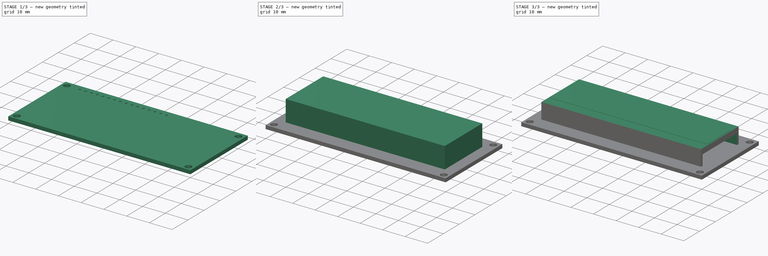
[diagram: build sequence overview — one tinted view per stage of 3, left to right]
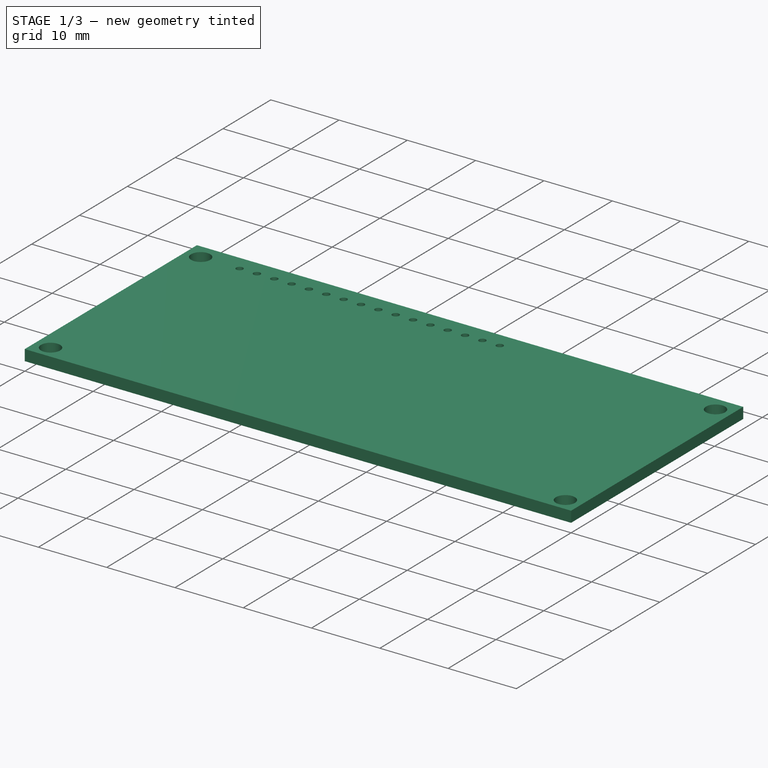
[diagram: stage 1 of 3 — iso view after this stage's code; geometry added in this stage tinted green]
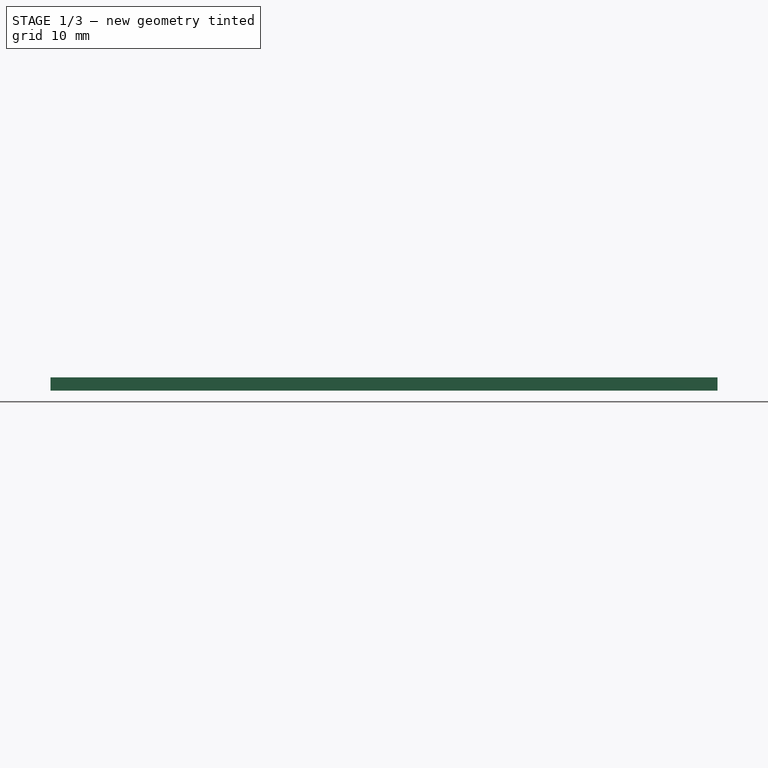
[diagram: stage 1 of 3 — front view after this stage's code; geometry added in this stage tinted green]
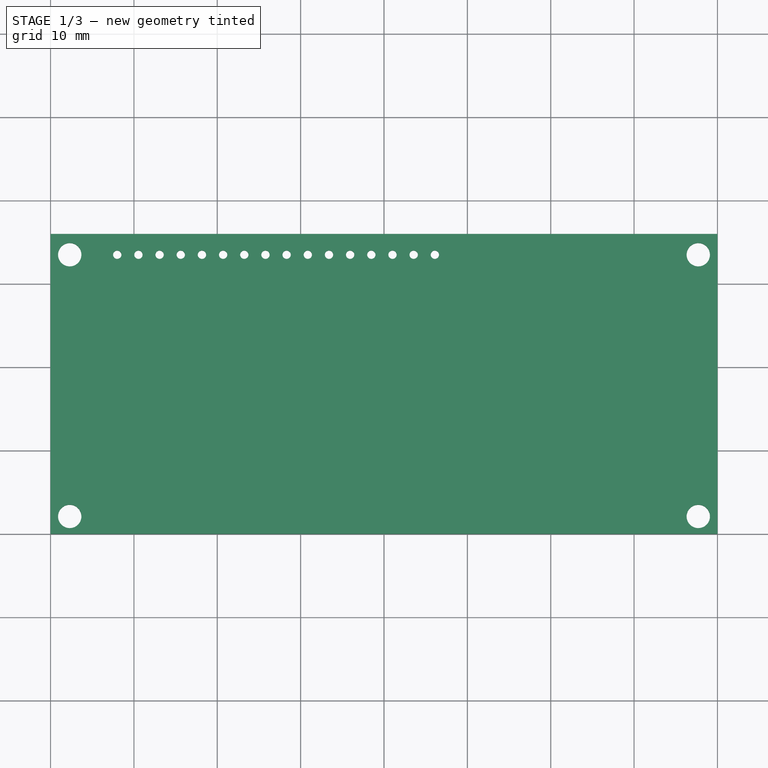
[diagram: stage 1 of 3 — top view after this stage's code; geometry added in this stage tinted green]
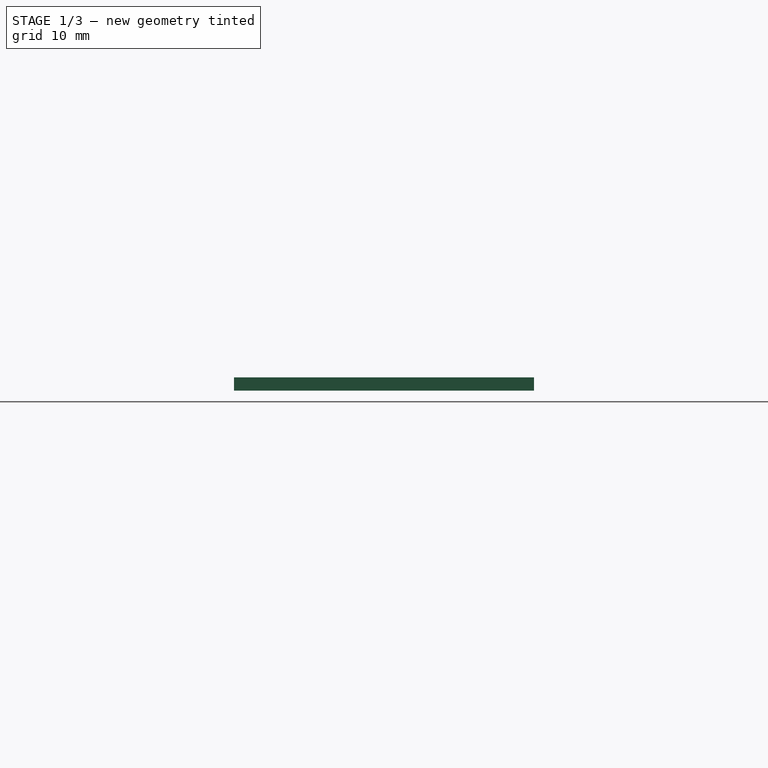
[diagram: stage 1 of 3 — right view after this stage's code; geometry added in this stage tinted green]
FCSTD DOCUMENT  (FreeCAD 0.19R22665 (Git))
Label: lcd
License: All rights reserved
LicenseURL: http://en.wikipedia.org/wiki/All_rights_reserved
objects: Sketcher::SketchObject×7, PartDesign::Pad×4, PartDesign::Pocket×3, PartDesign::Body×2, PartDesign::ShapeBinder×1, Part::FeaturePython×1, PartDesign::CoordinateSystem×1, App::Part×1
note: 26 computed .brp shape members not serialized (recipe doc carries the construction recipe); baked Part::Feature solids carry a one-line shape summary decoded from their .brp

FEATURE [Sketcher::SketchObject] Sketch003
  MapMode = 5
  Support = -> [XY_Plane001]
  sketch-geometry (4):
    g0: LineSegment StartX=-80 StartY=36 StartZ=0 EndX=0 EndY=36 EndZ=0
    g1: LineSegment StartX=0 StartY=36 StartZ=0 EndX=0 EndY=0 EndZ=0
    g2: LineSegment StartX=0 StartY=0 StartZ=0 EndX=-80 EndY=0 EndZ=0
    g3: LineSegment StartX=-80 StartY=0 StartZ=0 EndX=-80 EndY=36 EndZ=0
  constraints (11):
    c: Coincident(g0,g1)
    c: Coincident(g1,g2)
    c: Coincident(g2,g3)
    c: Coincident(g3,g0)
    c: Horizontal(g0)
    c: Horizontal(g2)
    c: Vertical(g1)
    c: Vertical(g3)
    c: Coincident(g1,g-1)
    c: Distance(g1) = 36
    c: Distance(g2) = 80
FEATURE [PartDesign::Pad] Pad001  label="Pad002"
  AllowMultiFace = false
  Direction = (1,1,1)
  Length = 1.6
  Length2 = 100
  Profile = -> Sketch003
  Type = 0
FEATURE [Sketcher::SketchObject] Sketch004
  ExternalGeometry = -> [Pad001]
  MapMode = 5
  Placement = pos=(0,0,1.6) rot=(0,0,1;0rad)
  Support = -> [Pad001]
  sketch-geometry (4):
    g0: Circle CenterX=-77.7 CenterY=33.5 CenterZ=0 NormalX=0 NormalY=0 NormalZ=1 AngleXU=0 Radius=1.4
    g1: Circle CenterX=-77.7 CenterY=2.1 CenterZ=0 NormalX=0 NormalY=0 NormalZ=1 AngleXU=0 Radius=1.4
    g2: Circle CenterX=-2.3 CenterY=33.5 CenterZ=0 NormalX=0 NormalY=0 NormalZ=1 AngleXU=0 Radius=1.4
    g3: Circle CenterX=-2.3 CenterY=2.1 CenterZ=0 NormalX=0 NormalY=0 NormalZ=1 AngleXU=0 Radius=1.4
  constraints (12):
    c: Horizontal(g0,g2)
    c: Horizontal(g1,g3)
    c: Vertical(g0,g1)
    c: Vertical(g2,g3)
    c: Equal(g0,g1)
    c: Equal(g1,g2)
    c: Equal(g2,g3)
    c: Radius(g0) = 1.4
    c: Distance(g0,g1) = 31.4
    c: Distance(g0,g2) = 75.4
    c: DistanceY(g2,g-3) = 2.5
    c: DistanceX(g2,g-3) = 2.3
FEATURE [PartDesign::Pocket] Pocket001
  AllowMultiFace = false
  BaseFeature = -> Pad001
  Length = 5
  Length2 = 100
  Profile = -> Sketch004
  Type = 1
FEATURE [Sketcher::SketchObject] Sketch005
  ExternalGeometry = -> [Pocket001]
  MapMode = 5
  Placement = pos=(0,0,1.6) rot=(0,0,1;0rad)
  Support = -> [Pocket001]
  sketch-geometry (16):
    g0: Circle CenterX=-72 CenterY=33.5 CenterZ=0 NormalX=0 NormalY=0 NormalZ=1 AngleXU=0 Radius=0.5
    g1: Circle CenterX=-69.46 CenterY=33.5 CenterZ=0 NormalX=0 NormalY=0 NormalZ=1 AngleXU=0 Radius=0.5
    g2: Circle CenterX=-64.38 CenterY=33.5 CenterZ=0 NormalX=0 NormalY=0 NormalZ=1 AngleXU=0 Radius=0.5
    g3: Circle CenterX=-59.3 CenterY=33.5 CenterZ=0 NormalX=0 NormalY=0 NormalZ=1 AngleXU=0 Radius=0.5
    g4: Circle CenterX=-66.92 CenterY=33.5 CenterZ=0 NormalX=0 NormalY=0 NormalZ=1 AngleXU=0 Radius=0.5
    g5: Circle CenterX=-61.84 CenterY=33.5 CenterZ=0 NormalX=0 NormalY=0 NormalZ=1 AngleXU=0 Radius=0.5
    g6: Circle CenterX=-56.76 CenterY=33.5 CenterZ=0 NormalX=0 NormalY=0 NormalZ=1 AngleXU=0 Radius=0.5
    g7: Circle CenterX=-51.68 CenterY=33.5 CenterZ=0 NormalX=0 NormalY=0 NormalZ=1 AngleXU=0 Radius=0.5
    g8: Circle CenterX=-54.22 CenterY=33.5 CenterZ=0 NormalX=0 NormalY=0 NormalZ=1 AngleXU=0 Radius=0.5
    g9: Circle CenterX=-49.14 CenterY=33.5 CenterZ=0 NormalX=0 NormalY=0 NormalZ=1 AngleXU=0 Radius=0.5
    g10: Circle CenterX=-46.6 CenterY=33.5 CenterZ=0 NormalX=0 NormalY=0 NormalZ=1 AngleXU=0 Radius=0.5
    g11: Circle CenterX=-36.44 CenterY=33.5 CenterZ=0 NormalX=0 NormalY=0 NormalZ=1 AngleXU=0 Radius=0.5
    g12: Circle CenterX=-44.06 CenterY=33.5 CenterZ=0 NormalX=0 NormalY=0 NormalZ=1 AngleXU=0 Radius=0.5
    g13: Circle CenterX=-38.98 CenterY=33.5 CenterZ=0 NormalX=0 NormalY=0 NormalZ=1 AngleXU=0 Radius=0.5
    g14: Circle CenterX=-33.9 CenterY=33.5 CenterZ=0 NormalX=0 NormalY=0 NormalZ=1 AngleXU=0 Radius=0.5
    g15: Circle CenterX=-41.52 CenterY=33.5 CenterZ=0 NormalX=0 NormalY=0 NormalZ=1 AngleXU=0 Radius=0.5
  constraints (48):
    c: Radius(g0) = 0.5
    c: DistanceX(g-3,g0) = 8
    c: DistanceY(g0,g-3) = 2.5
    c: Equal(g0,g1) = 0.5
    c: Equal(g1,g2)
    c: Equal(g2,g3)
    c: Equal(g0,g4) = 0.5
    c: Equal(g4,g5) = 0.5
    c: Equal(g5,g6)
    c: Equal(g6,g7)
    c: Equal(g0,g8) = 0.5
    c: Equal(g8,g9) = 0.5
    c: Equal(g9,g10)
    c: Equal(g10,g11)
    c: Equal(g8,g12) = 0.5
    c: Equal(g12,g13) = 0.5
    c: Equal(g13,g14)
    c: Equal(g14,g15)
    c: Horizontal(g0,g1)
    c: Horizontal(g1,g4)
    c: Horizontal(g4,g2)
    c: Horizontal(g5,g3)
    c: Horizontal(g3,g6)
    c: Horizontal(g6,g8)
    c: Horizontal(g7,g9)
    c: Horizontal(g9,g10)
    c: Horizontal(g10,g12)
    c: Horizontal(g15,g13)
    c: Horizontal(g13,g11)
    c: Horizontal(g11,g14)
    c: Horizontal(g2,g5)
    c: Horizontal(g5,g7)
    c: Horizontal(g12,g15)
    c: Distance(g0,g1) = 2.54
    c: Distance(g1,g4) = 2.54
    c: Distance(g4,g2) = 2.54
    c: Distance(g2,g5) = 2.54
    c: Distance(g5,g3) = 2.54
    c: Distance(g6,g3) = 2.54
    c: Distance(g8,g6) = 2.54
    c: Distance(g8,g7) = 2.54
    c: Distance(g7,g9) = 2.54
    c: Distance(g9,g10) = 2.54
    c: Distance(g10,g12) = 2.54
    c: Distance(g15,g12) = 2.54
    c: Distance(g15,g13) = 2.54
    c: Distance(g13,g11) = 2.54
    c: Distance(g11,g14) = 2.54
FEATURE [PartDesign::Pocket] Pocket002
  AllowMultiFace = false
  BaseFeature = -> Pocket001
  Length = 5
  Length2 = 100
  Profile = -> Sketch005
  Type = 1
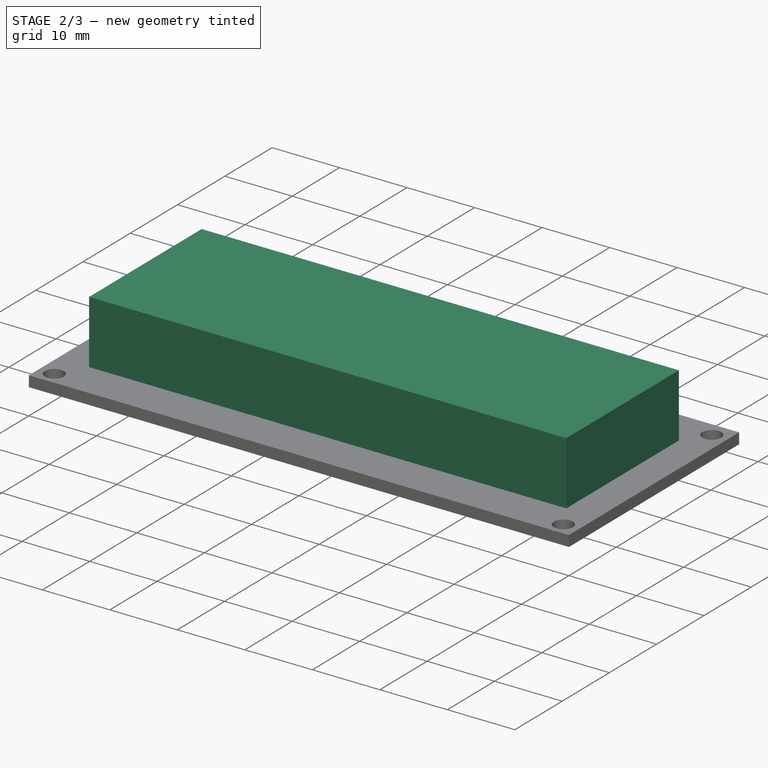
[diagram: stage 2 of 3 — iso view after this stage's code; geometry added in this stage tinted green]
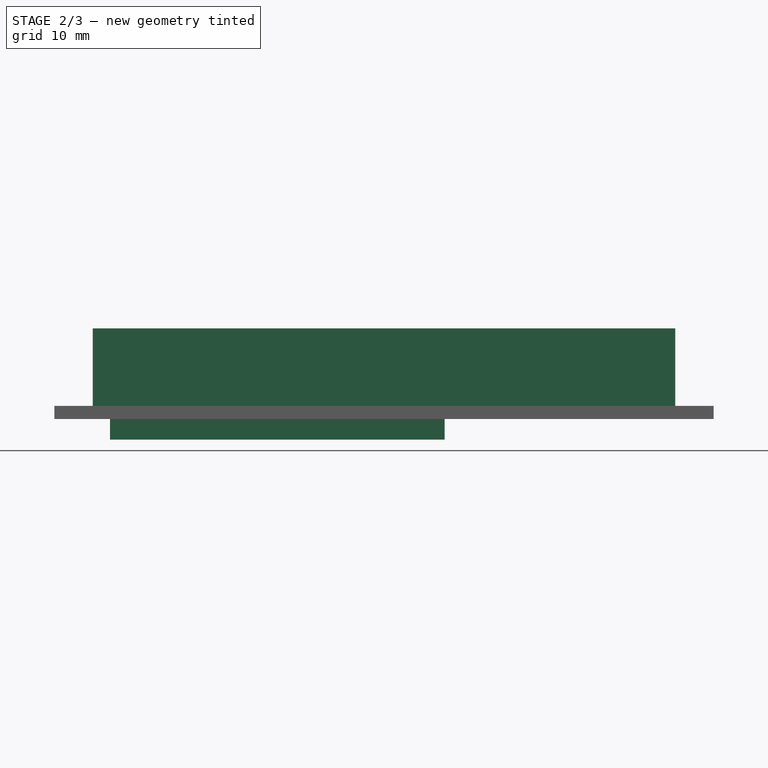
[diagram: stage 2 of 3 — front view after this stage's code; geometry added in this stage tinted green]
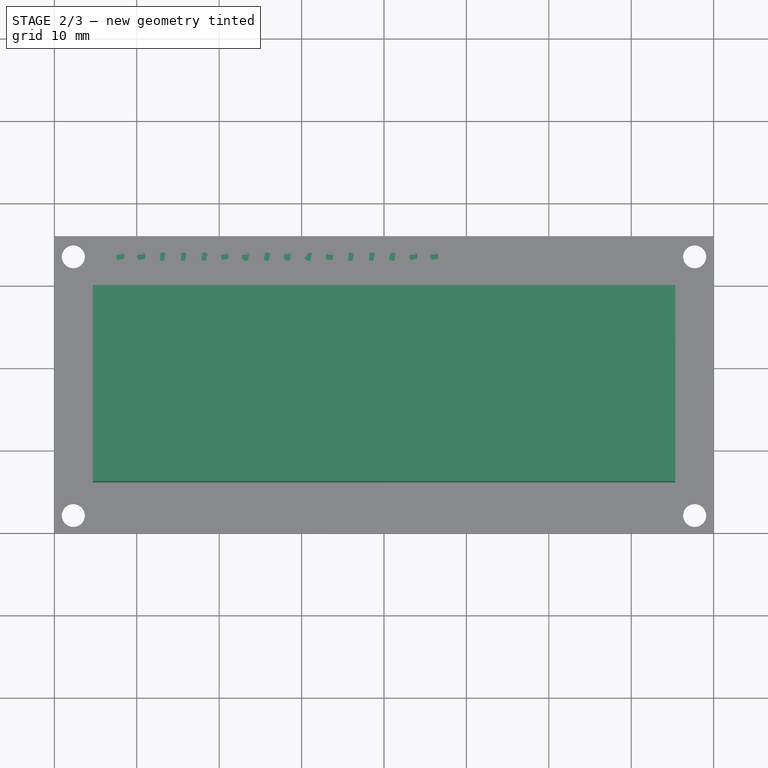
[diagram: stage 2 of 3 — top view after this stage's code; geometry added in this stage tinted green]
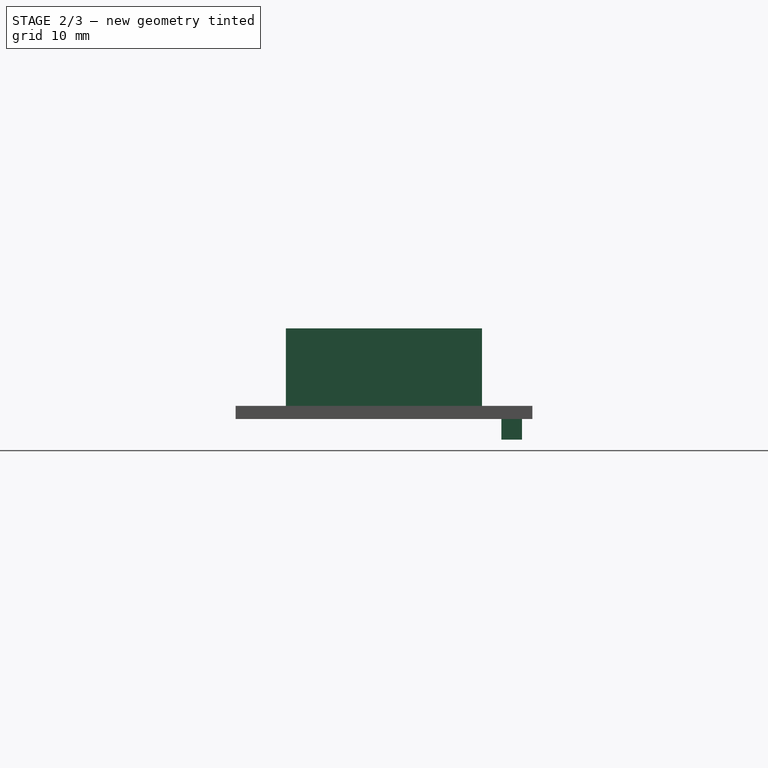
[diagram: stage 2 of 3 — right view after this stage's code; geometry added in this stage tinted green]
FEATURE [PartDesign::ShapeBinder] ShapeBinder
  Support = -> [Pocket002]
  TraceSupport = false
FEATURE [Sketcher::SketchObject] Sketch
  ExternalGeometry = -> [ShapeBinder]
  MapMode = 5
  Support = -> [XY_Plane]
  sketch-geometry (6):
    g0: LineSegment StartX=-75.35 StartY=29.9 StartZ=0 EndX=-4.65 EndY=29.9 EndZ=0
    g1: LineSegment StartX=-4.65 StartY=29.9 StartZ=0 EndX=-4.65 EndY=6.1 EndZ=0
    g2: LineSegment StartX=-4.65 StartY=6.1 StartZ=0 EndX=-75.35 EndY=6.1 EndZ=0
    g3: LineSegment StartX=-75.35 StartY=6.1 StartZ=0 EndX=-75.35 EndY=29.9 EndZ=0
    g4: LineSegment [constr] StartX=-75.35 StartY=18 StartZ=0 EndX=-4.65 EndY=18 EndZ=0
    g5: LineSegment [constr] StartX=-40 StartY=29.9 StartZ=0 EndX=-40 EndY=6.1 EndZ=0
  constraints (16):
    c: Coincident(g0,g1)
    c: Coincident(g1,g2)
    c: Coincident(g2,g3)
    c: Coincident(g3,g0)
    c: Horizontal(g2)
    c: Vertical(g1)
    c: Distance(g0) = 70.7
    c: Distance(g3) = 23.8
    c: Symmetric(g0,g2,g4)
    c: PointOnObject(g4,g3)
    c: PointOnObject(g4,g1)
    c: Symmetric(g-3,g-4,g4)
    c: PointOnObject(g5,g0)
    c: PointOnObject(g5,g2)
    c: Symmetric(g0,g0,g5)
    c: Symmetric(g-3,g-3,g5)
FEATURE [PartDesign::Pad] Pad
  AllowMultiFace = false
  Direction = (1,1,1)
  Length = 11
  Length2 = 100
  Profile = -> Sketch
  Type = 0
FEATURE [PartDesign::Body] Body  label="corpo_lcd"
  Group = -> [Sketch,Pad,Sketch001,Pocket,Sketch002,ShapeBinder,Pad002]
  Origin = -> Origin
  Placement = pos=(0,0,-2.4) rot=(0,0,1;0rad)
  Tip = -> Pad002
FEATURE [Sketcher::SketchObject] Sketch006
  ExternalGeometry = -> [Pocket002]
  MapMode = 5
  Placement = pos=(0,0,0) rot=(1,0,0;3.14159rad)
  Support = -> [Pocket002]
  sketch-geometry (5):
    g0: LineSegment StartX=-73.25 StartY=-32.25 StartZ=0 EndX=-32.65 EndY=-32.25 EndZ=0
    g1: LineSegment StartX=-32.65 StartY=-32.25 StartZ=0 EndX=-32.65 EndY=-34.75 EndZ=0
    g2: LineSegment StartX=-32.65 StartY=-34.75 StartZ=0 EndX=-73.25 EndY=-34.75 EndZ=0
    g3: LineSegment StartX=-73.25 StartY=-34.75 StartZ=0 EndX=-73.25 EndY=-32.25 EndZ=0
    g4: LineSegment [constr] StartX=-73.25 StartY=-33.5 StartZ=0 EndX=-69.46 EndY=-33.5 EndZ=0
  constraints (14):
    c: Coincident(g0,g1)
    c: Coincident(g1,g2)
    c: Coincident(g2,g3)
    c: Coincident(g3,g0)
    c: Horizontal(g0)
    c: Horizontal(g2)
    c: Vertical(g1)
    c: Vertical(g3)
    c: Distance(g3) = 2.5
    c: Coincident(g-5,g4)
    c: PointOnObject(g4,g3)
    c: Symmetric(g0,g2,g4)
    c: DistanceX(g2,g-4) = 1.25
    c: DistanceX(g-6,g1) = 1.25
FEATURE [PartDesign::Pad] Pad003  label="Pad004"
  AllowMultiFace = false
  BaseFeature = -> Pocket002
  Direction = (1,1,1)
  Length = 2.5
  Length2 = 100
  Profile = -> Sketch006
  Type = 0
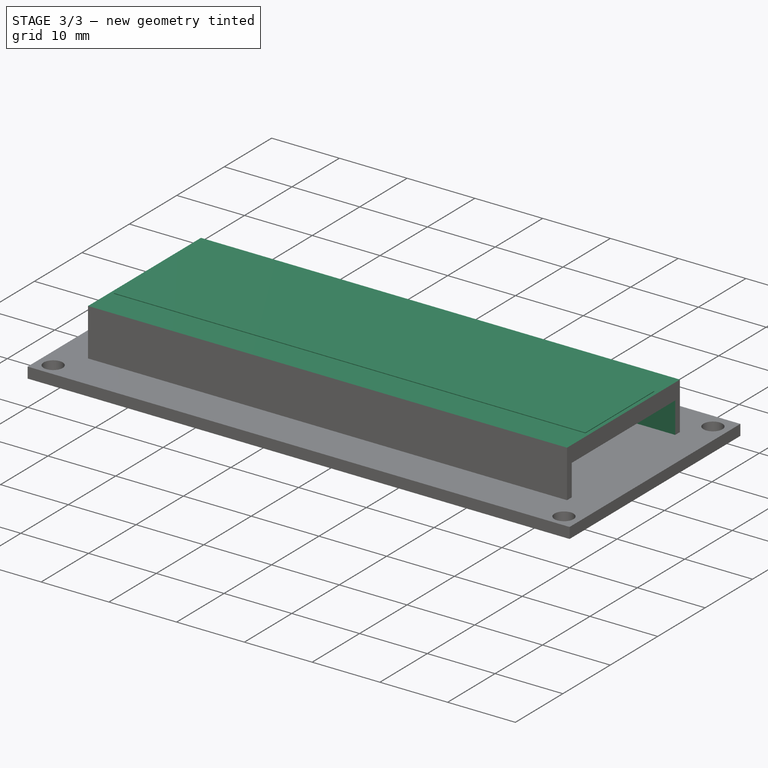
[diagram: stage 3 of 3 — iso view after this stage's code; geometry added in this stage tinted green]
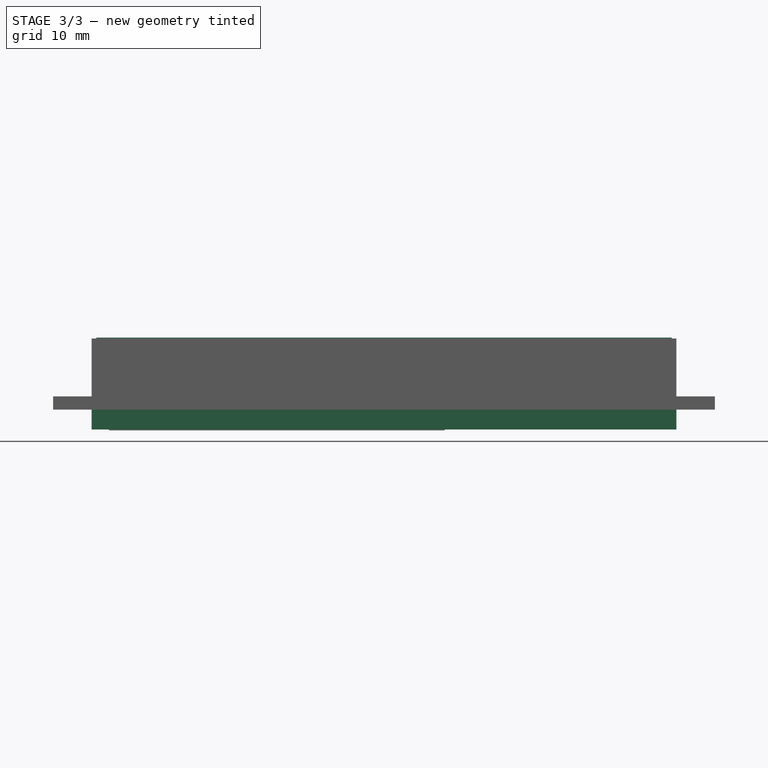
[diagram: stage 3 of 3 — front view after this stage's code; geometry added in this stage tinted green]
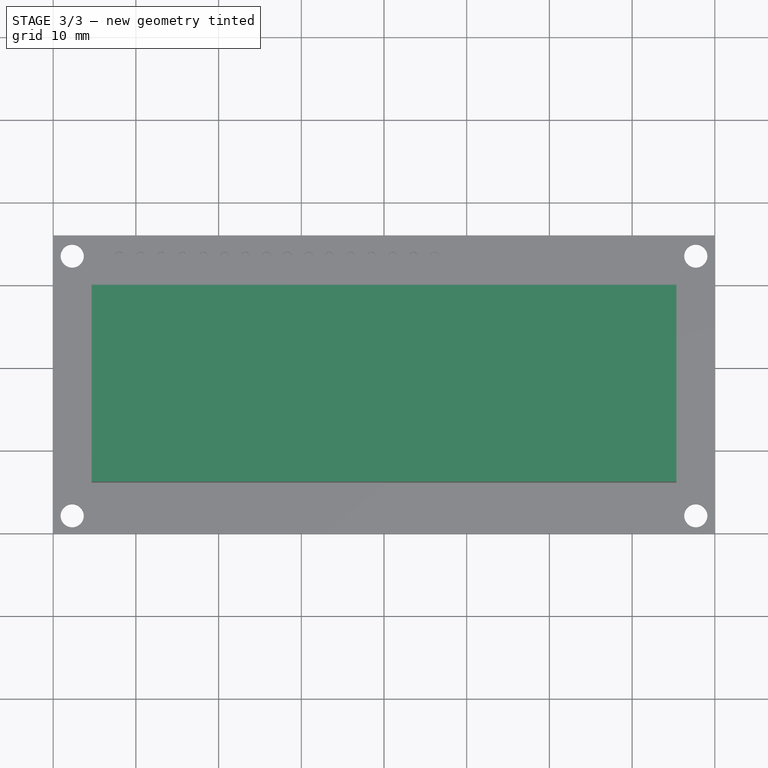
[diagram: stage 3 of 3 — top view after this stage's code; geometry added in this stage tinted green]
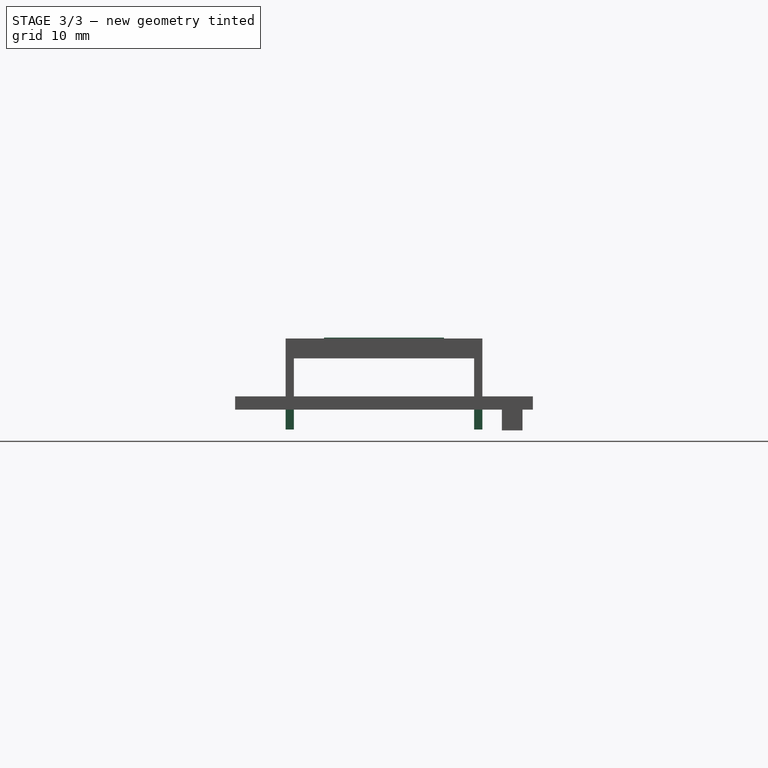
[diagram: stage 3 of 3 — right view after this stage's code; geometry added in this stage tinted green]
FEATURE [Sketcher::SketchObject] Sketch001
  ExternalGeometry = -> [Pad]
  MapMode = 5
  Placement = pos=(0,0,0) rot=(1,0,0;3.14159rad)
  Support = -> [Pad]
  sketch-geometry (4):
    g0: LineSegment StartX=-75.35 StartY=-7.1 StartZ=0 EndX=-4.65 EndY=-7.1 EndZ=0
    g1: LineSegment StartX=-4.65 StartY=-7.1 StartZ=0 EndX=-4.65 EndY=-28.9 EndZ=0
    g2: LineSegment StartX=-4.65 StartY=-28.9 StartZ=0 EndX=-75.35 EndY=-28.9 EndZ=0
    g3: LineSegment StartX=-75.35 StartY=-28.9 StartZ=0 EndX=-75.35 EndY=-7.1 EndZ=0
  constraints (12):
    c: Coincident(g0,g1)
    c: Coincident(g1,g2)
    c: Coincident(g2,g3)
    c: Coincident(g3,g0)
    c: Horizontal(g0)
    c: Horizontal(g2)
    c: Vertical(g1)
    c: Vertical(g3)
    c: DistanceY(g0,g-3) = 1
    c: DistanceY(g-3,g2) = 1
    c: DistanceX(g-3,g0) = 0
    c: DistanceX(g0,g-4) = 0
FEATURE [PartDesign::Pocket] Pocket
  AllowMultiFace = false
  BaseFeature = -> Pad
  Length = 8.6
  Length2 = 100
  Profile = -> Sketch001
  Type = 0
FEATURE [Sketcher::SketchObject] Sketch002
  ExternalGeometry = -> [Pocket]
  MapMode = 5
  Placement = pos=(0,0,11) rot=(0,0,1;0rad)
  Support = -> [Pocket]
  sketch-geometry (4):
    g0: LineSegment StartX=-74.8 StartY=25.25 StartZ=0 EndX=-5.2 EndY=25.25 EndZ=0
    g1: LineSegment StartX=-5.2 StartY=25.25 StartZ=0 EndX=-5.2 EndY=10.75 EndZ=0
    g2: LineSegment StartX=-5.2 StartY=10.75 StartZ=0 EndX=-74.8 EndY=10.75 EndZ=0
    g3: LineSegment StartX=-74.8 StartY=10.75 StartZ=0 EndX=-74.8 EndY=25.25 EndZ=0
  constraints (12):
    c: Coincident(g0,g1)
    c: Coincident(g1,g2)
    c: Coincident(g2,g3)
    c: Coincident(g3,g0)
    c: Horizontal(g0)
    c: Horizontal(g2)
    c: Vertical(g1)
    c: Vertical(g3)
    c: Distance(g0) = 69.6
    c: Distance(g3) = 14.5
    c: DistanceX(g-3,g0) = 0.55
    c: DistanceY(g0,g-3) = 4.65
FEATURE [PartDesign::Pad] Pad002  label="Pad003"
  AllowMultiFace = false
  BaseFeature = -> Pocket
  Direction = (1,1,1)
  Length = 0.1
  Length2 = 100
  Profile = -> Sketch002
  Type = 0
FEATURE [PartDesign::Body] Body001  label="pcb"
  Group = -> [Sketch003,Pad001,Sketch004,Pocket001,Sketch005,Pocket002,Sketch006,Pad003]
  Origin = -> Origin001
  Tip = -> Pad003
FEATURE [Part::FeaturePython] BooleanFragments  # WARN: FeaturePython — macro-defined, semantics opaque (R4)
  Mode = 0
  Objects = -> [Body001,Body]
  Tolerance = 0
FEATURE [PartDesign::CoordinateSystem] LCS_pcb
  AttacherType = Attacher::AttachEngine3D
  MapMode = 7
  Placement = pos=(-73.25,34.75,-2.5) rot=(0,0.707107,0.707107;3.14159rad)
  Support = -> [Pad003]
FEATURE [App::Part] Part  label="lcd_block"
  Group = -> [Body,Body001,BooleanFragments,LCS_pcb]
  Origin = -> Origin002
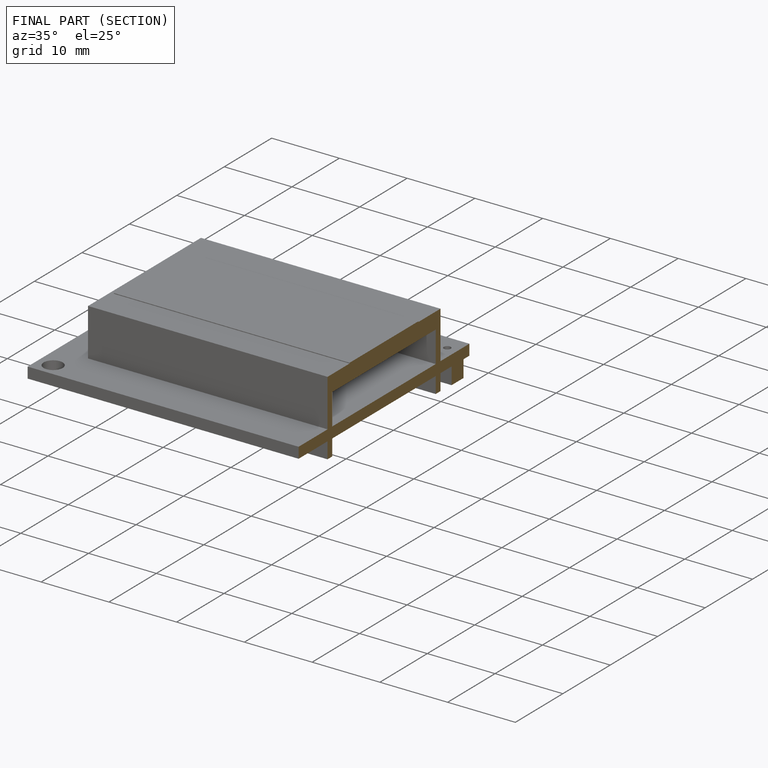
[diagram: finished part — half-section view (interior)]
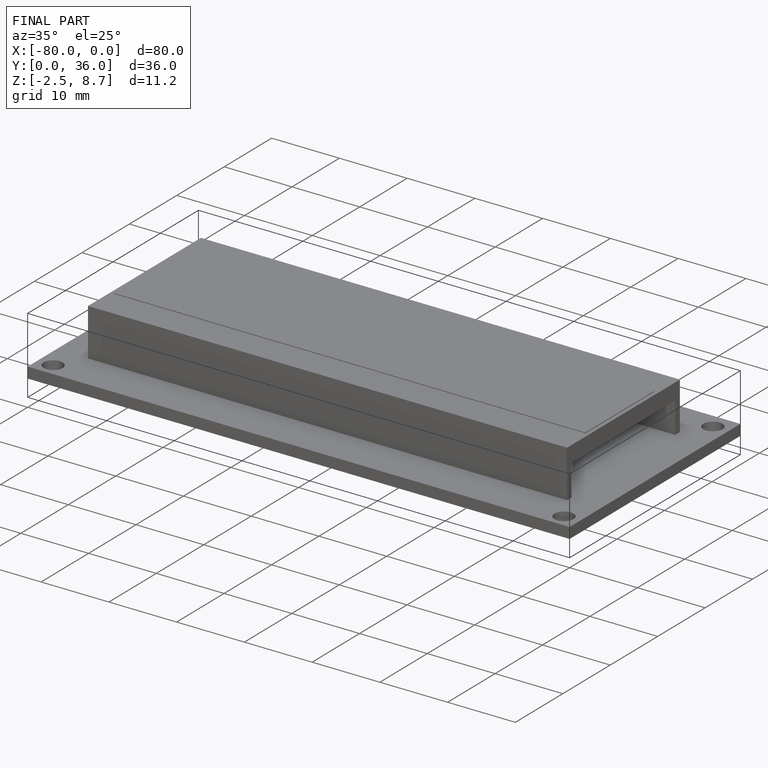
[diagram: finished part — iso view with bounding-box wireframe]
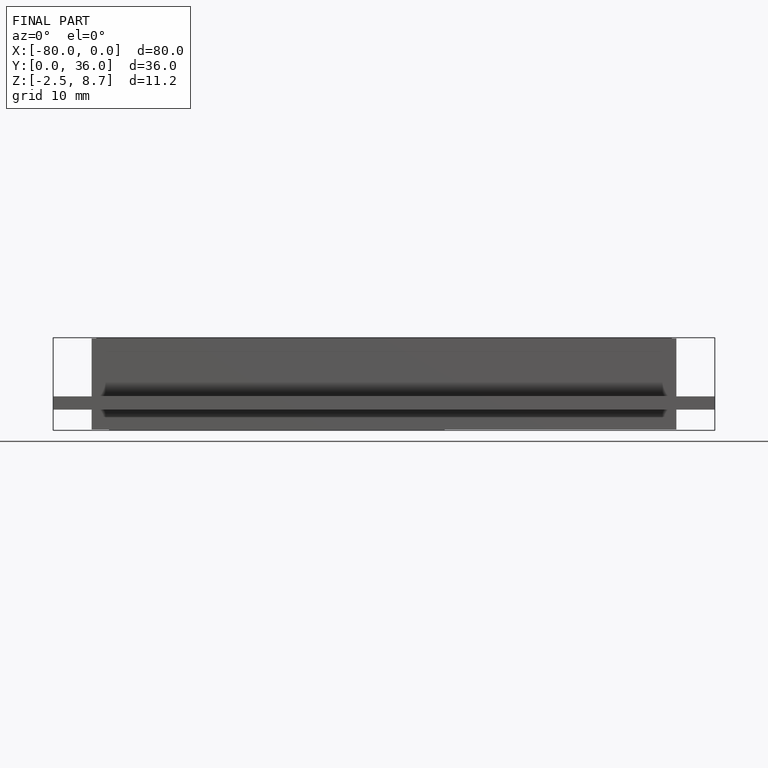
[diagram: finished part — front view with bounding-box wireframe]
